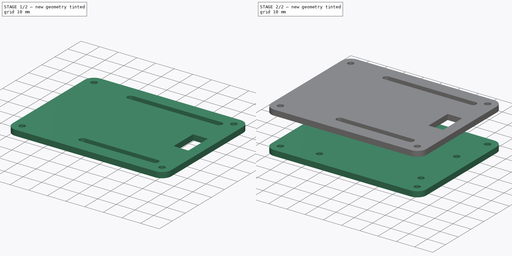
[diagram: build sequence overview — one tinted view per stage of 2, left to right]
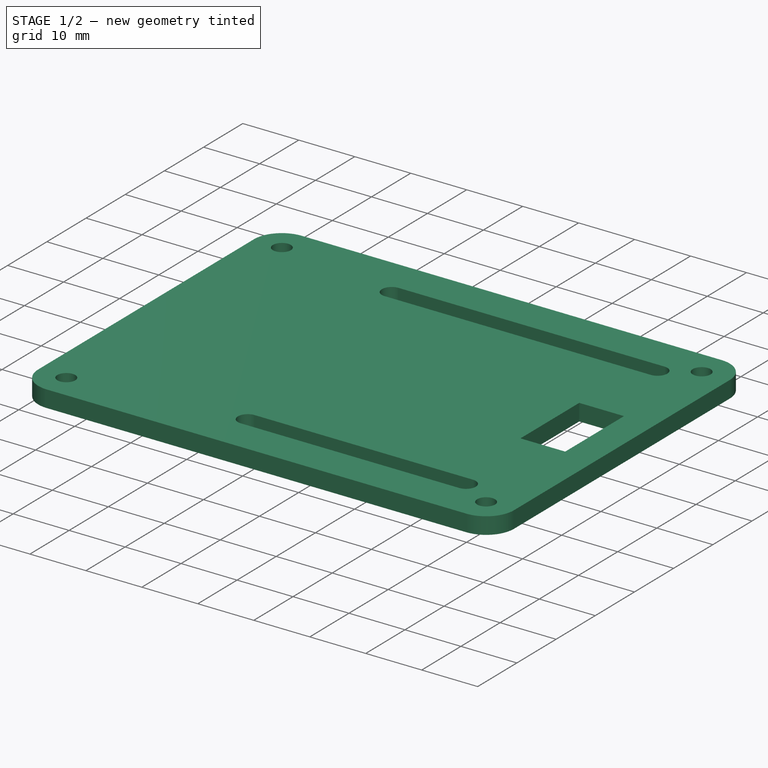
[diagram: stage 1 of 2 — iso view after this stage's code; geometry added in this stage tinted green]
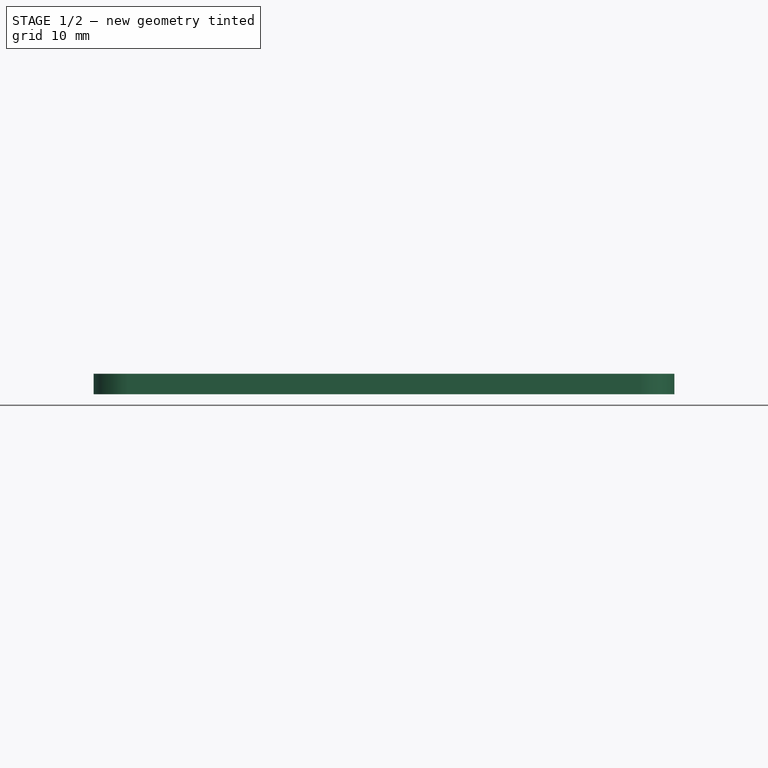
[diagram: stage 1 of 2 — front view after this stage's code; geometry added in this stage tinted green]
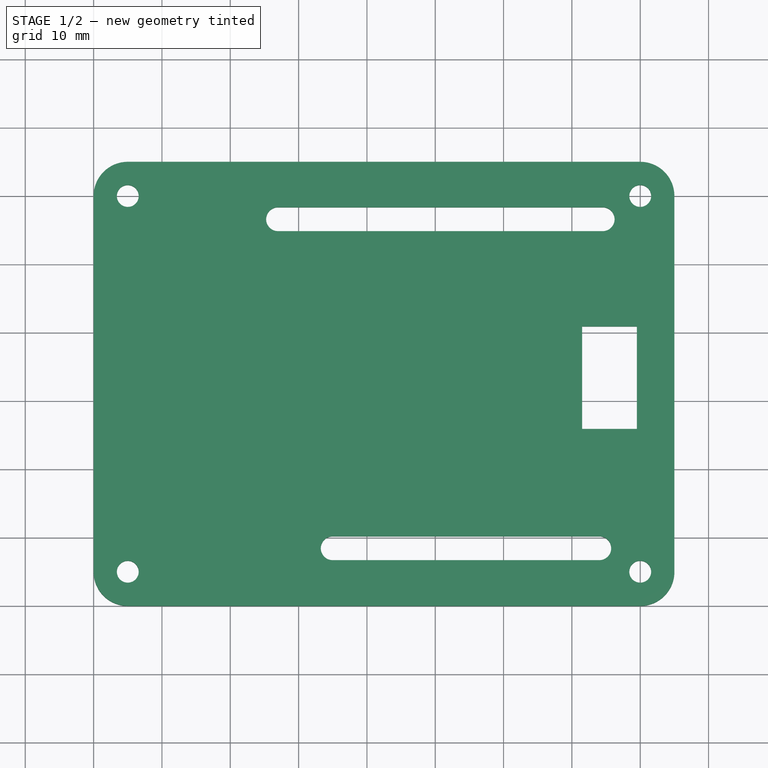
[diagram: stage 1 of 2 — top view after this stage's code; geometry added in this stage tinted green]
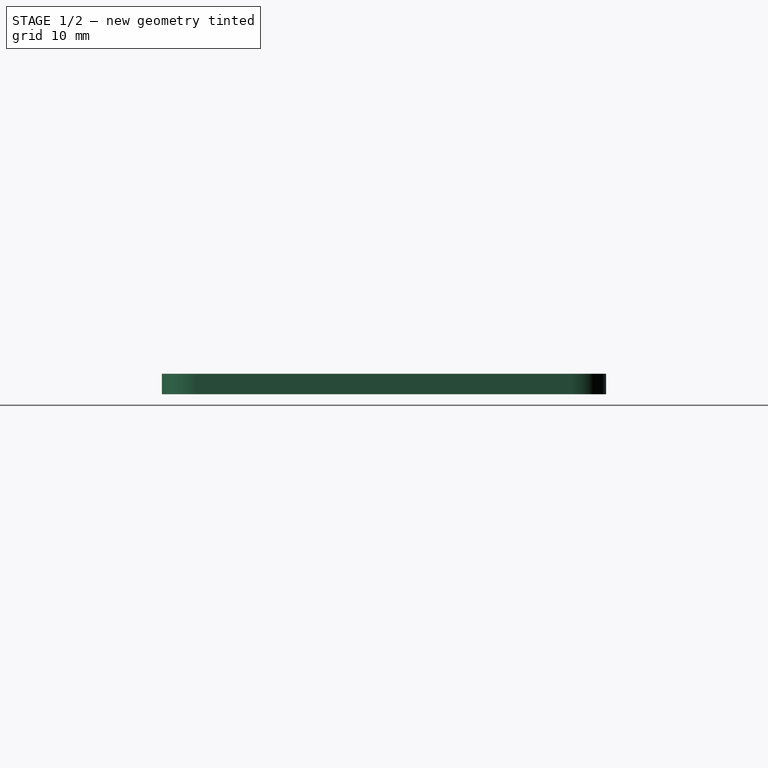
[diagram: stage 1 of 2 — right view after this stage's code; geometry added in this stage tinted green]
FCSTD DOCUMENT
Label: ArduinoCaseNO1.FCStd）
objects: Sketcher::SketchObject×2, PartDesign::Pad×2
note: 6 computed .brp shape members not serialized (recipe doc carries the construction recipe); baked Part::Feature solids carry a one-line shape summary decoded from their .brp

FEATURE [Sketcher::SketchObject] Sketch001
  Placement = pos=(0,0,20) rot=(0,0,1;0rad)
  sketch-geometry (25):
    g0: LineSegment StartX=15 StartY=75 StartZ=0 EndX=90 EndY=75 EndZ=0
    g1: LineSegment StartX=95 StartY=70 StartZ=0 EndX=95 EndY=15 EndZ=0
    g2: LineSegment StartX=90 StartY=10 StartZ=0 EndX=15 EndY=10 EndZ=0
    g3: LineSegment StartX=10 StartY=15 StartZ=0 EndX=10 EndY=70 EndZ=0
    g4: ArcOfCircle CenterX=15 CenterY=70 CenterZ=0 NormalX=0 NormalY=0 NormalZ=1 Radius=5 StartAngle=1.5708 EndAngle=3.14159
    g5: ArcOfCircle CenterX=90 CenterY=70 CenterZ=0 NormalX=0 NormalY=0 NormalZ=1 Radius=5 StartAngle=0 EndAngle=1.5708
    g6: ArcOfCircle CenterX=15 CenterY=15 CenterZ=0 NormalX=0 NormalY=0 NormalZ=1 Radius=5 StartAngle=3.14159 EndAngle=4.71239
    g7: ArcOfCircle CenterX=90 CenterY=15 CenterZ=0 NormalX=0 NormalY=0 NormalZ=1 Radius=5 StartAngle=4.71239 EndAngle=6.28319
    g8: Circle CenterX=15 CenterY=70 CenterZ=0 NormalX=0 NormalY=0 NormalZ=1 Radius=1.6
    g9: Circle CenterX=90 CenterY=70 CenterZ=0 NormalX=0 NormalY=0 NormalZ=1 Radius=1.6
    g10: Circle CenterX=15 CenterY=15 CenterZ=0 NormalX=0 NormalY=0 NormalZ=1 Radius=1.6
    g11: Circle CenterX=90 CenterY=15 CenterZ=0 NormalX=0 NormalY=0 NormalZ=1 Radius=1.6
    g12: LineSegment StartX=45 StartY=20.19 StartZ=0 EndX=84 EndY=20.19 EndZ=0
    g13: LineSegment StartX=45 StartY=16.69 StartZ=0 EndX=84 EndY=16.69 EndZ=0
    g14: ArcOfCircle CenterX=84 CenterY=18.44 CenterZ=0 NormalX=0 NormalY=0 NormalZ=1 Radius=1.75 StartAngle=4.71239 EndAngle=7.85398
    g15: ArcOfCircle CenterX=45 CenterY=18.44 CenterZ=0 NormalX=0 NormalY=0 NormalZ=1 Radius=1.75 StartAngle=1.5708 EndAngle=4.71239
    g16: LineSegment StartX=37 StartY=68.35 StartZ=0 EndX=84.5 EndY=68.35 EndZ=0
    g17: LineSegment StartX=37 StartY=64.85 StartZ=0 EndX=84.5 EndY=64.85 EndZ=0
    g18: ArcOfCircle CenterX=37 CenterY=66.6 CenterZ=0 NormalX=0 NormalY=0 NormalZ=1 Radius=1.75 StartAngle=1.5708 EndAngle=4.71239
    g19: ArcOfCircle CenterX=84.5 CenterY=66.6 CenterZ=0 NormalX=0 NormalY=0 NormalZ=1 Radius=1.75 StartAngle=4.71239 EndAngle=7.85398
    g20: GeomPoint [constr] X=30 Y=15.9 Z=0
    g21: LineSegment StartX=81.5 StartY=50.9 StartZ=0 EndX=89.5 EndY=50.9 EndZ=0
    g22: LineSegment StartX=89.5 StartY=50.9 StartZ=0 EndX=89.5 EndY=35.9 EndZ=0
    g23: LineSegment StartX=89.5 StartY=35.9 StartZ=0 EndX=81.5 EndY=35.9 EndZ=0
    g24: LineSegment StartX=81.5 StartY=35.9 StartZ=0 EndX=81.5 EndY=50.9 EndZ=0
  constraints (74):
    c: Horizontal(g0)
    c: Horizontal(g2)
    c: Vertical(g1)
    c: Vertical(g3)
    c: Tangent(g3,g4)
    c: Tangent(g0,g4)
    c: Tangent(g0,g5)
    c: Tangent(g1,g5)
    c: Tangent(g2,g6)
    c: Tangent(g3,g6)
    c: Tangent(g2,g7)
    c: Tangent(g1,g7)
    c: Radius(g4) = 5
    c: Equal(g4,g5)
    c: Equal(g5,g6)
    c: Equal(g6,g7)
    c: Radius(g8) = 1.6
    c: Equal(g8,g10)
    c: Equal(g10,g11)
    c: Equal(g11,g9)
    c: Distance(g8,g3) = 5
    c: Distance(g8,g0) = 5
    c: Distance(g9,g0) = 5
    c: Distance(g9,g1) = 5
    c: Distance(g10,g3) = 5
    c: Distance(g10,g2) = 5
    c: Distance(g11,g1) = 5
    c: Distance(g11,g2) = 5
    c: DistanceX(g3,g1) = 85
    c: DistanceY(g0,g2) = -65
    c: Horizontal(g12)
    c: Horizontal(g13)
    c: Coincident(g14,g12)
    c: Coincident(g14,g13)
    c: Coincident(g12,g15)
    c: Coincident(g13,g15)
    c: Tangent(g13,g14)
    c: Tangent(g12,g14)
    c: Tangent(g15,g12)
    c: Tangent(g15,g13)
    c: DistanceX(g12) = 39
    c: DistanceY(g12,g13) = -3.5
    c: Distance(g13,g3) = 35
    c: Horizontal(g16)
    c: Horizontal(g17)
    c: Coincident(g16,g18)
    c: Coincident(g18,g17)
    c: Coincident(g16,g19)
    c: Coincident(g17,g19)
    c: Tangent(g16,g18)
    c: Tangent(g18,g17)
    c: Tangent(g16,g19)
    c: Tangent(g19,g17)
    c: DistanceX(g16) = 47.5
    c: DistanceY(g16,g17) = -3.5
    c: Distance(g18,g3) = 27
    c: Distance(g20,g3) = 20
    c: Distance(g20,g2) = 5.9
    c: DistanceY(g15,g20) = -2.54
    c: DistanceY(g18,g20) = -50.7
    c: Coincident(g21,g22)
    c: Coincident(g22,g23)
    c: Coincident(g23,g24)
    c: Coincident(g24,g21)
    c: Horizontal(g21)
    c: Horizontal(g23)
    c: Vertical(g22)
    c: Vertical(g24)
    c: DistanceY(g24) = 15
    c: DistanceX(g21) = 8
    c: DistanceY(g23,g20) = -20
    c: Distance(g23,g1) = 13.5
    c: DistanceX(g-2,g3) = 10
    c: DistanceY(g-1,g2) = 10
FEATURE [PartDesign::Pad] Pad001  label="top"
  Length = 3
  Length2 = 100
  Placement = pos=(0,0,20) rot=(0,0,1;0rad)
  Sketch = -> Sketch001
  Type = 0
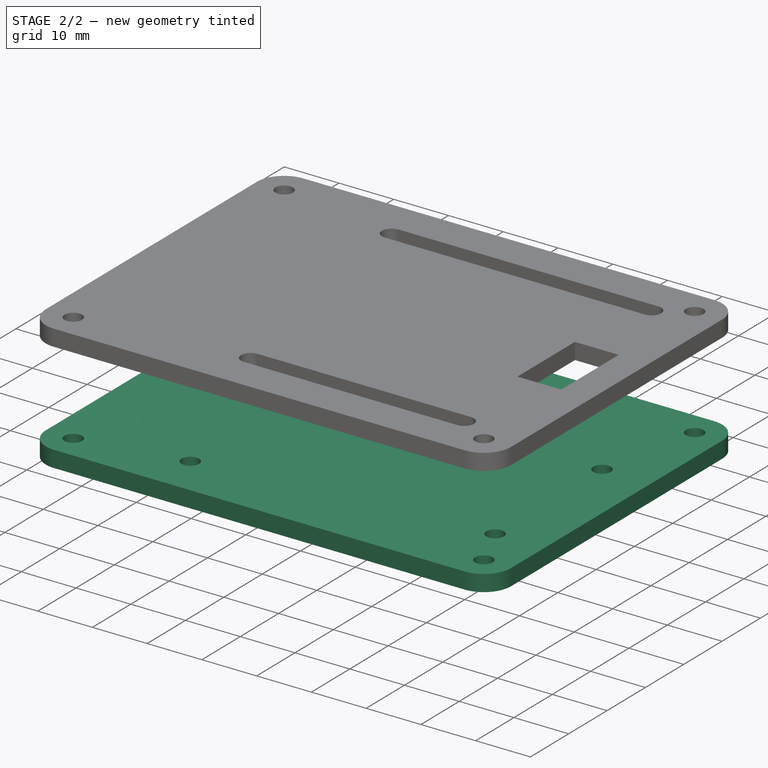
[diagram: stage 2 of 2 — iso view after this stage's code; geometry added in this stage tinted green]
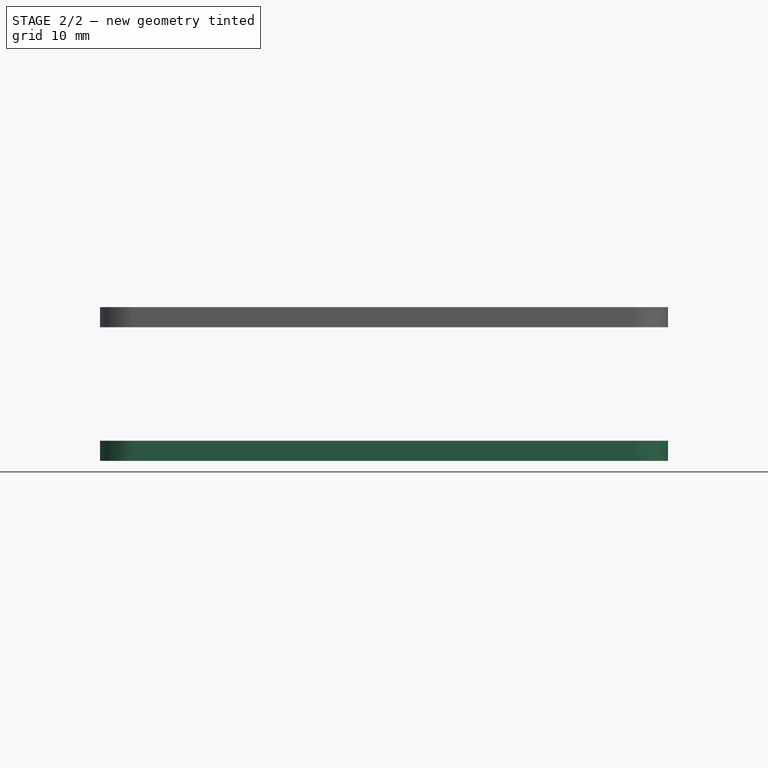
[diagram: stage 2 of 2 — front view after this stage's code; geometry added in this stage tinted green]
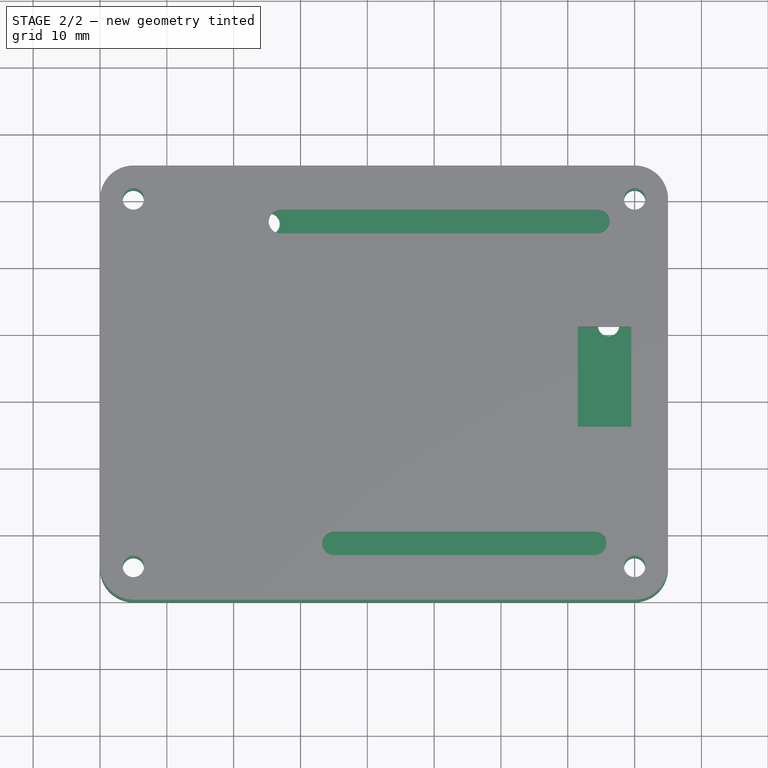
[diagram: stage 2 of 2 — top view after this stage's code; geometry added in this stage tinted green]
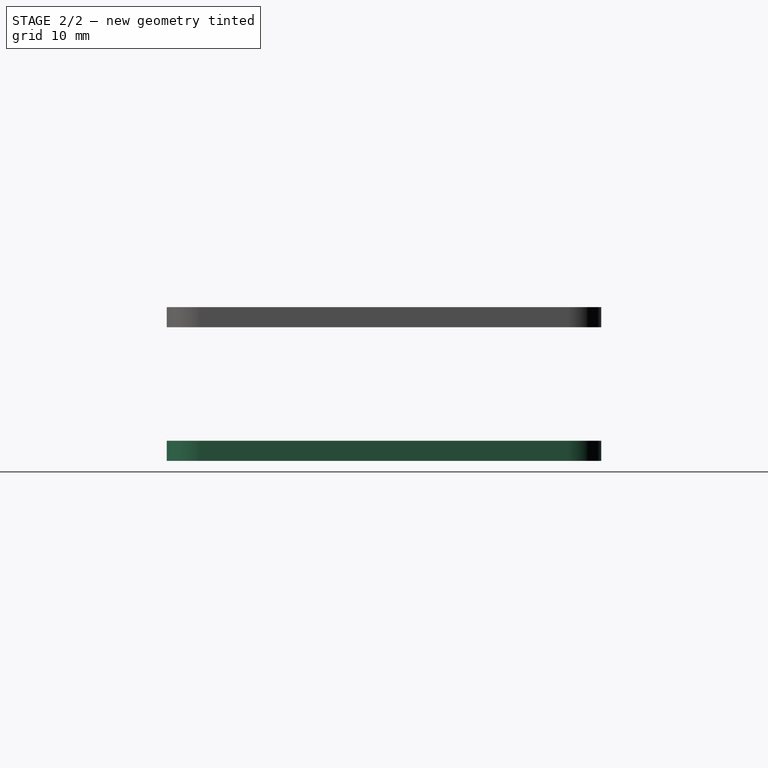
[diagram: stage 2 of 2 — right view after this stage's code; geometry added in this stage tinted green]
FEATURE [Sketcher::SketchObject] Sketch
  sketch-geometry (17):
    g0: LineSegment StartX=15 StartY=75 StartZ=0 EndX=90 EndY=75 EndZ=0
    g1: LineSegment StartX=95 StartY=70 StartZ=0 EndX=95 EndY=15 EndZ=0
    g2: LineSegment StartX=90 StartY=10 StartZ=0 EndX=15 EndY=10 EndZ=0
    g3: LineSegment StartX=10 StartY=15 StartZ=0 EndX=10 EndY=70 EndZ=0
    g4: ArcOfCircle CenterX=15 CenterY=70 CenterZ=0 NormalX=0 NormalY=0 NormalZ=1 Radius=5 StartAngle=1.5708 EndAngle=3.14159
    g5: ArcOfCircle CenterX=90 CenterY=70 CenterZ=0 NormalX=0 NormalY=0 NormalZ=1 Radius=5 StartAngle=0 EndAngle=1.5708
    g6: ArcOfCircle CenterX=15 CenterY=15 CenterZ=0 NormalX=0 NormalY=0 NormalZ=1 Radius=5 StartAngle=3.14159 EndAngle=4.71239
    g7: ArcOfCircle CenterX=90 CenterY=15 CenterZ=0 NormalX=0 NormalY=0 NormalZ=1 Radius=5 StartAngle=4.71239 EndAngle=6.28319
    g8: Circle CenterX=15 CenterY=70 CenterZ=0 NormalX=0 NormalY=0 NormalZ=1 Radius=1.6
    g9: Circle CenterX=90 CenterY=70 CenterZ=0 NormalX=0 NormalY=0 NormalZ=1 Radius=1.6
    g10: Circle CenterX=15 CenterY=15 CenterZ=0 NormalX=0 NormalY=0 NormalZ=1 Radius=1.6
    g11: Circle CenterX=90 CenterY=15 CenterZ=0 NormalX=0 NormalY=0 NormalZ=1 Radius=1.6
    g12: Circle [constr] CenterX=15 CenterY=70 CenterZ=0 NormalX=0 NormalY=0 NormalZ=1 Radius=2.75
    g13: Circle CenterX=35.3 CenterY=66.6 CenterZ=0 NormalX=0 NormalY=0 NormalZ=1 Radius=1.6
    g14: Circle CenterX=34 CenterY=18.4 CenterZ=0 NormalX=0 NormalY=0 NormalZ=1 Radius=1.6
    g15: Circle CenterX=86.1 CenterY=23.5 CenterZ=0 NormalX=0 NormalY=0 NormalZ=1 Radius=1.6
    g16: Circle CenterX=86.1 CenterY=51.4 CenterZ=0 NormalX=0 NormalY=0 NormalZ=1 Radius=1.6
  constraints (46):
    c: Horizontal(g0)
    c: Horizontal(g2)
    c: Vertical(g1)
    c: Vertical(g3)
    c: Tangent(g3,g4)
    c: Tangent(g0,g4)
    c: DistanceY(g0,g4) = -5
    c: Tangent(g0,g5)
    c: Tangent(g1,g5)
    c: Equal(g4,g5)
    c: DistanceX(g3,g1) = 85
    c: Tangent(g3,g6)
    c: Tangent(g2,g6)
    c: Tangent(g2,g7)
    c: Tangent(g1,g7)
    c: Equal(g4,g6)
    c: Equal(g6,g7)
    c: DistanceX(g-2,g3) = 10
    c: DistanceY(g-1,g2) = 10
    c: DistanceY(g0,g2) = -65
    c: Equal(g8,g10)
    c: Equal(g10,g11)
    c: Equal(g11,g9)
    c: Radius(g8) = 1.6
    c: Radius(g12) = 2.75
    c: Coincident(g12,g8)
    c: Distance(g8,g3) = 5
    c: Distance(g8,g0) = 5
    c: Distance(g9,g0) = 5
    c: Distance(g9,g1) = 5
    c: Distance(g11,g2) = 5
    c: Distance(g11,g1) = 5
    c: Distance(g10,g3) = 5
    c: Distance(g10,g2) = 5
    c: Equal(g8,g13)
    c: Equal(g13,g14)
    c: Equal(g14,g15)
    c: Equal(g15,g16)
    c: DistanceX(g13,g16) = 50.8
    c: DistanceY(g13,g16) = -15.2
    c: DistanceY(g16,g15) = -27.9
    c: DistanceY(g15,g14) = -5.1
    c: DistanceX(g14,g13) = 1.3
    c: DistanceX(g15,g13) = -50.8
    c: Distance(g14,g3) = 24
    c: Distance(g14,g2) = 8.4
FEATURE [PartDesign::Pad] Pad  label="bottom"
  Length = 3
  Length2 = 100
  Sketch = -> Sketch
  Type = 0
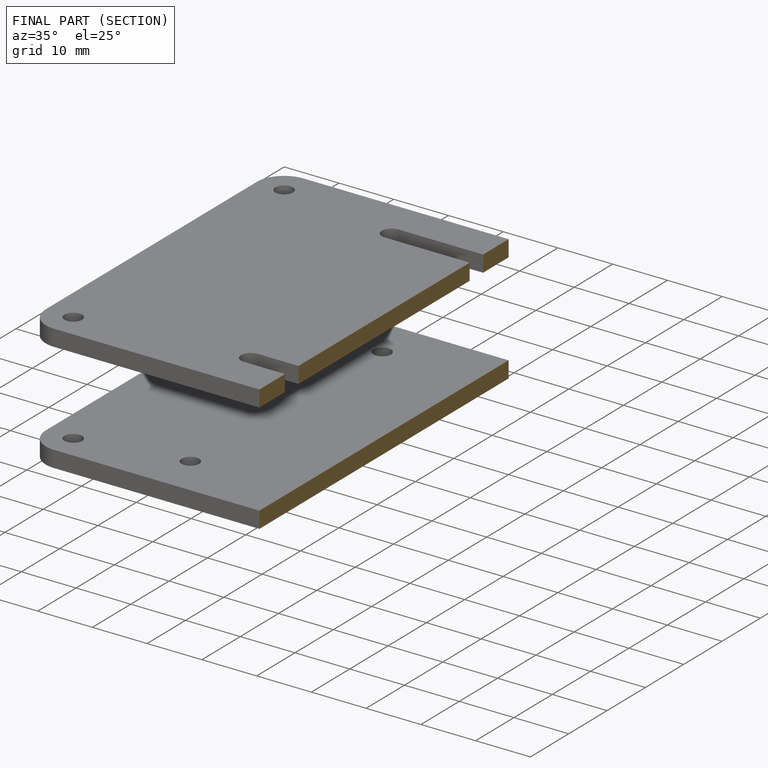
[diagram: finished part — half-section view (interior)]
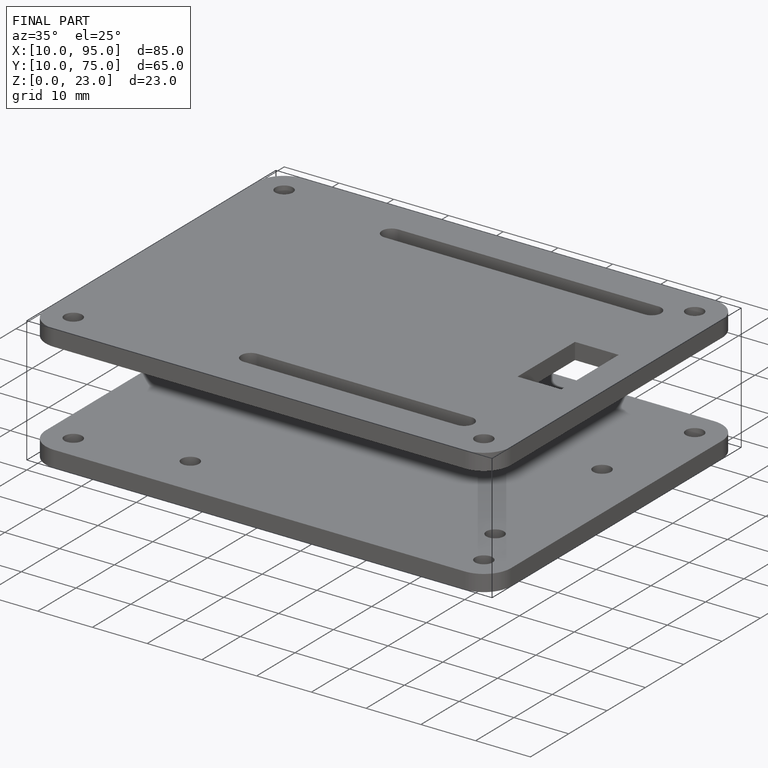
[diagram: finished part — iso view with bounding-box wireframe]
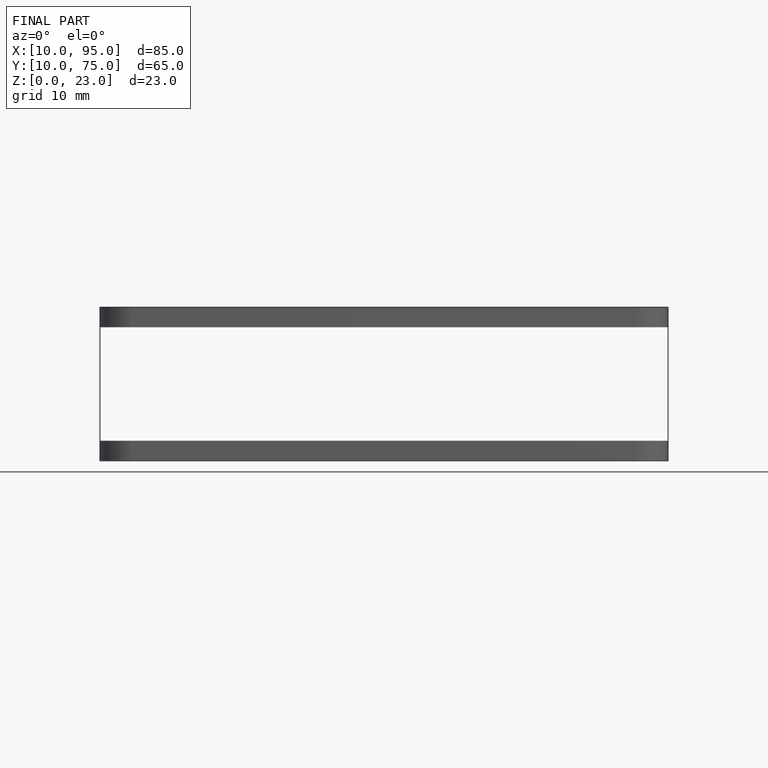
[diagram: finished part — front view with bounding-box wireframe]
